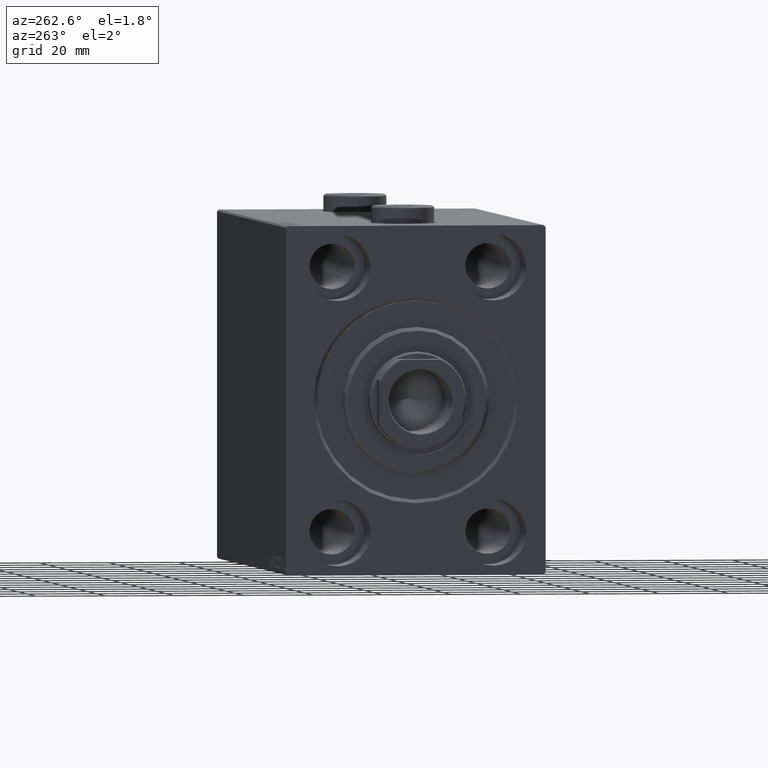
[diagram: clean part render]
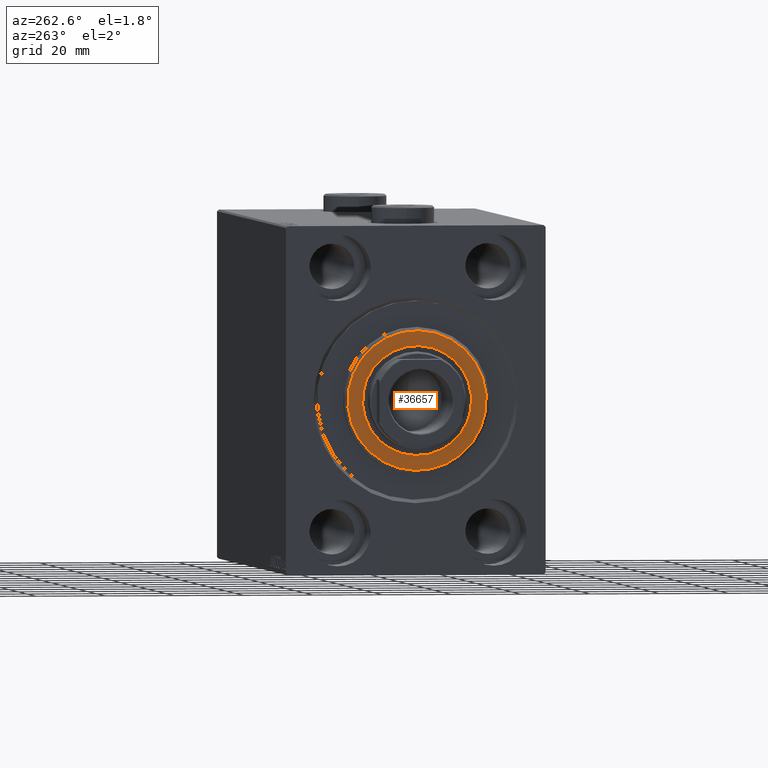
[diagram: same view with one face highlighted and labeled with its STEP entity id]
A machine part, auxiliary view. The second image highlights one B-rep face of the part: STEP entity #36657.
In plain terms, the highlighted planar face has unit normal (-1, 0, 0).
Its self-contained STEP definition (entity closure, byte-faithful):
#99 = CIRCLE ( 'NONE', #24991, 15.75000000000000000 ) ;
#3122 = VERTEX_POINT ( 'NONE', #34120 ) ;
#3359 = EDGE_CURVE ( 'NONE', #39176, #3122, #17320, .T. ) ;
#6261 = AXIS2_PLACEMENT_3D ( 'NONE', #11729, #15168, #36694 ) ;
#6732 = EDGE_LOOP ( 'NONE', ( #15752, #18822 ) ) ;
#7439 = AXIS2_PLACEMENT_3D ( 'NONE', #39949, #36504, #22532 ) ;
#7894 = ORIENTED_EDGE ( 'NONE', *, *, #3359, .T. ) ;
#8346 = CARTESIAN_POINT ( 'NONE',  ( 3.000000000000000000, 0.000000000000000000, 0.000000000000000000 ) ) ;
#8598 = ORIENTED_EDGE ( 'NONE', *, *, #16717, .T. ) ;
#11729 = CARTESIAN_POINT ( 'NONE',  ( 3.000000000000000000, 0.000000000000000000, 0.000000000000000000 ) ) ;
#15168 = DIRECTION ( 'NONE',  ( 1.000000000000000000, -0.000000000000000000, 0.000000000000000000 ) ) ;
#15752 = ORIENTED_EDGE ( 'NONE', *, *, #24950, .T. ) ;
#16717 = EDGE_CURVE ( 'NONE', #3122, #39176, #99, .T. ) ;
#17320 = CIRCLE ( 'NONE', #23170, 15.75000000000000000 ) ;
#18266 = FACE_OUTER_BOUND ( 'NONE', #6732, .T. ) ;
#18822 = ORIENTED_EDGE ( 'NONE', *, *, #20997, .T. ) ;
#20483 = CARTESIAN_POINT ( 'NONE',  ( 3.000000000000000000, 0.000000000000000000, 19.99999999999999645 ) ) ;
#20766 = CARTESIAN_POINT ( 'NONE',  ( 3.000000000000000000, 1.928818708657080950E-15, -15.75000000000000000 ) ) ;
#20997 = EDGE_CURVE ( 'NONE', #41346, #29840, #37399, .T. ) ;
#22532 = DIRECTION ( 'NONE',  ( 0.000000000000000000, 0.000000000000000000, -1.000000000000000000 ) ) ;
#23170 = AXIS2_PLACEMENT_3D ( 'NONE', #40053, #25177, #43268 ) ;
#24950 = EDGE_CURVE ( 'NONE', #29840, #41346, #31856, .T. ) ;
#24991 = AXIS2_PLACEMENT_3D ( 'NONE', #8346, #36051, #32845 ) ;
#25177 = DIRECTION ( 'NONE',  ( -1.000000000000000000, 0.000000000000000000, -0.000000000000000000 ) ) ;
#25367 = DIRECTION ( 'NONE',  ( 1.000000000000000000, -0.000000000000000000, 0.000000000000000000 ) ) ;
#28128 = CARTESIAN_POINT ( 'NONE',  ( 3.000000000000000000, 2.510525938252074087E-15, -19.99999999999999645 ) ) ;
#28794 = FACE_BOUND ( 'NONE', #33526, .T. ) ;
#29476 = PLANE ( 'NONE',  #32079 ) ;
#29840 = VERTEX_POINT ( 'NONE', #20483 ) ;
#31856 = CIRCLE ( 'NONE', #6261, 19.99999999999999645 ) ;
#32079 = AXIS2_PLACEMENT_3D ( 'NONE', #42773, #25367, #39347 ) ;
#32845 = DIRECTION ( 'NONE',  ( 0.000000000000000000, 0.000000000000000000, -1.000000000000000000 ) ) ;
#33526 = EDGE_LOOP ( 'NONE', ( #8598, #7894 ) ) ;
#34120 = CARTESIAN_POINT ( 'NONE',  ( 3.000000000000000000, 0.000000000000000000, 15.75000000000000000 ) ) ;
#36051 = DIRECTION ( 'NONE',  ( -1.000000000000000000, 0.000000000000000000, -0.000000000000000000 ) ) ;
#36504 = DIRECTION ( 'NONE',  ( 1.000000000000000000, -0.000000000000000000, 0.000000000000000000 ) ) ;
#36657 = ADVANCED_FACE ( 'NONE', ( #18266, #28794 ), #29476, .T. ) ;
#36694 = DIRECTION ( 'NONE',  ( 0.000000000000000000, 0.000000000000000000, -1.000000000000000000 ) ) ;
#37399 = CIRCLE ( 'NONE', #7439, 19.99999999999999645 ) ;
#39176 = VERTEX_POINT ( 'NONE', #20766 ) ;
#39347 = DIRECTION ( 'NONE',  ( 0.000000000000000000, 0.000000000000000000, -1.000000000000000000 ) ) ;
#39949 = CARTESIAN_POINT ( 'NONE',  ( 3.000000000000000000, 0.000000000000000000, 0.000000000000000000 ) ) ;
#40053 = CARTESIAN_POINT ( 'NONE',  ( 3.000000000000000000, 0.000000000000000000, 0.000000000000000000 ) ) ;
#41346 = VERTEX_POINT ( 'NONE', #28128 ) ;
#42773 = CARTESIAN_POINT ( 'NONE',  ( 3.000000000000000000, 0.000000000000000000, 0.000000000000000000 ) ) ;
#43268 = DIRECTION ( 'NONE',  ( 0.000000000000000000, 0.000000000000000000, -1.000000000000000000 ) ) ;